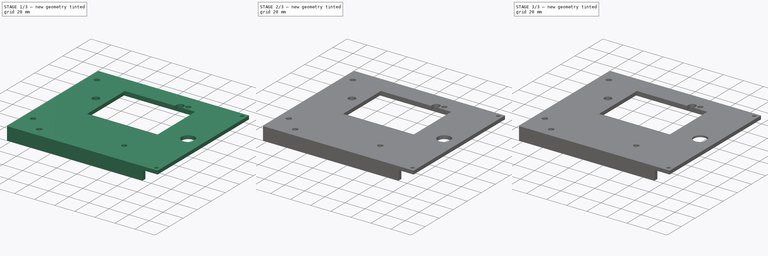
[diagram: build sequence overview — one tinted view per stage of 3, left to right]
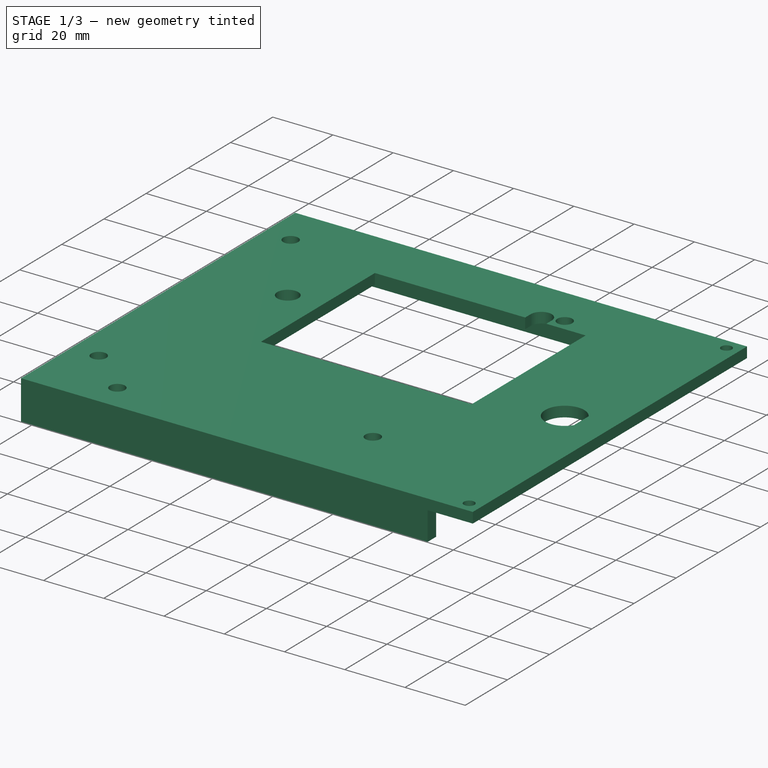
[diagram: stage 1 of 3 — iso view after this stage's code; geometry added in this stage tinted green]
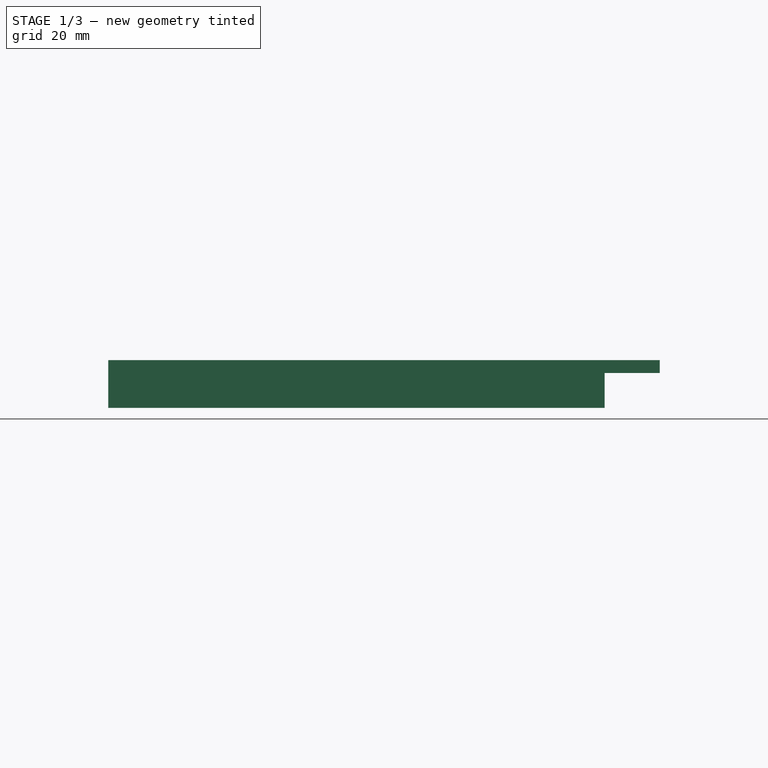
[diagram: stage 1 of 3 — front view after this stage's code; geometry added in this stage tinted green]
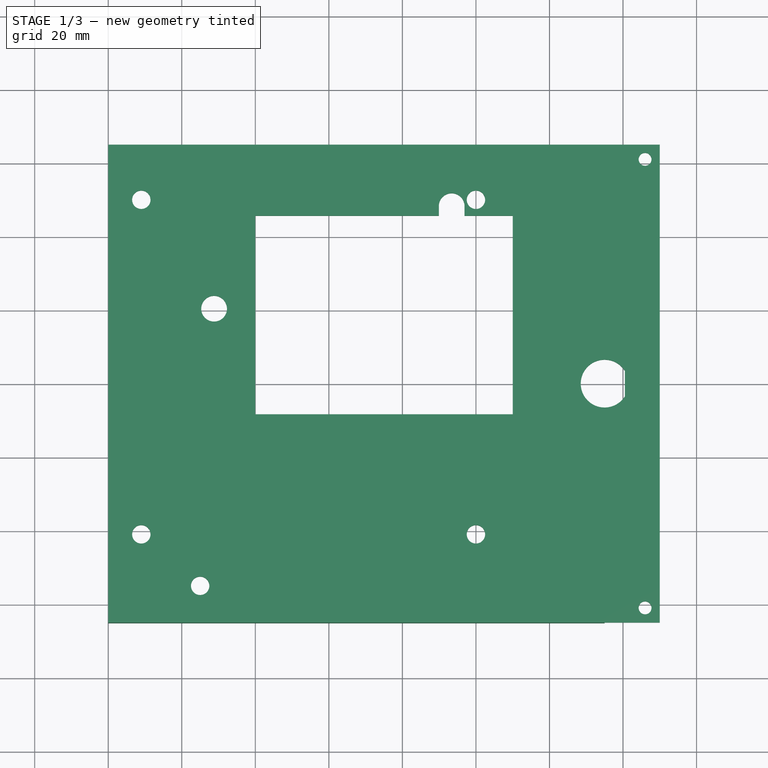
[diagram: stage 1 of 3 — top view after this stage's code; geometry added in this stage tinted green]
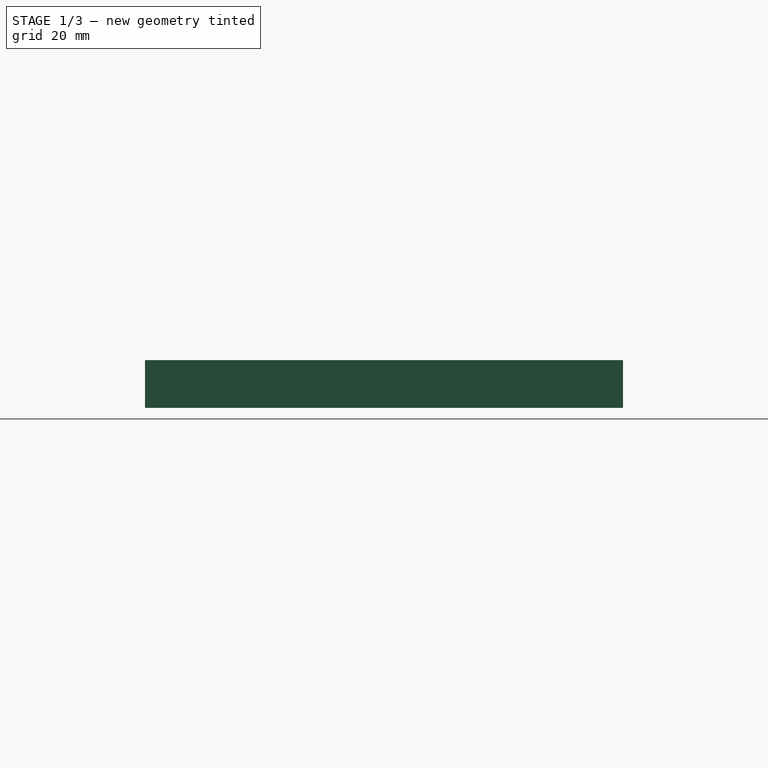
[diagram: stage 1 of 3 — right view after this stage's code; geometry added in this stage tinted green]
FCSTD DOCUMENT  (FreeCAD 0.19R24267 +99 (Git))
Label: T41 7IN Back Right Panel V007
License: All rights reserved
LicenseURL: http://en.wikipedia.org/wiki/All_rights_reserved
objects: Sketcher::SketchObject×6, PartDesign::Pocket×4, PartDesign::Pad×2, PartDesign::Body×1
note: 19 computed .brp shape members not serialized (recipe doc carries the construction recipe); baked Part::Feature solids carry a one-line shape summary decoded from their .brp

FEATURE [Sketcher::SketchObject] CopySketch010
  FullyConstrained = true
  MapMode = 5
  Placement = pos=(0,0,0) rot=(0,1,0;3.14159rad)
  Support = -> [XY_Plane]
  sketch-geometry (22):
    g0: Circle CenterX=-100 CenterY=50 CenterZ=0 NormalX=0 NormalY=0 NormalZ=1 AngleXU=0 Radius=2.5
    g1: Circle CenterX=-100 CenterY=-41 CenterZ=0 NormalX=0 NormalY=0 NormalZ=1 AngleXU=0 Radius=2.5
    g2: Circle CenterX=-9 CenterY=-41 CenterZ=0 NormalX=0 NormalY=0 NormalZ=1 AngleXU=0 Radius=2.5
    g3: Circle CenterX=-9 CenterY=50 CenterZ=0 NormalX=0 NormalY=0 NormalZ=1 AngleXU=0 Radius=2.5
    g4: LineSegment StartX=-40 StartY=-8.35 StartZ=0 EndX=-110 EndY=-8.35 EndZ=0
    g5: LineSegment StartX=-110 StartY=-8.35 StartZ=0 EndX=-110 EndY=45.65 EndZ=0
    g6: LineSegment StartX=-110 StartY=45.65 StartZ=0 EndX=-96.908 EndY=45.65 EndZ=0
    g7: LineSegment StartX=-40 StartY=45.65 StartZ=0 EndX=-40 EndY=-8.35 EndZ=0
    g8: Circle CenterX=-28.79 CenterY=20.377 CenterZ=0 NormalX=0 NormalY=0 NormalZ=1 AngleXU=0 Radius=3.5
    g9: ArcOfCircle CenterX=-93.408 CenterY=48.264 CenterZ=0 NormalX=0 NormalY=0 NormalZ=1 AngleXU=0 Radius=3.5 StartAngle=6.28204 EndAngle=9.42478
    g10: ArcOfCircle CenterX=-135 CenterY=0 CenterZ=0 NormalX=0 NormalY=0 NormalZ=1 AngleXU=0 Radius=6.5 StartAngle=3.70366 EndAngle=8.86271
    g11: LineSegment StartX=-140.5 StartY=-3.4641 StartZ=0 EndX=-140.5 EndY=3.4641 EndZ=0
    g12: LineSegment StartX=-150 StartY=65 StartZ=0 EndX=0 EndY=65 EndZ=0
    g13: LineSegment StartX=0 StartY=65 StartZ=0 EndX=0 EndY=-65 EndZ=0
    g14: LineSegment StartX=0 StartY=-65 StartZ=0 EndX=-150 EndY=-65 EndZ=0
    g15: LineSegment StartX=-150 StartY=-65 StartZ=0 EndX=-150 EndY=65 EndZ=0
    g16: Circle CenterX=-146 CenterY=61 CenterZ=0 NormalX=0 NormalY=0 NormalZ=1 AngleXU=0 Radius=1.75
    g17: Circle CenterX=-146 CenterY=-61 CenterZ=0 NormalX=0 NormalY=0 NormalZ=1 AngleXU=0 Radius=1.75
    g18: LineSegment StartX=-96.908 StartY=48.264 StartZ=0 EndX=-96.908 EndY=45.65 EndZ=0
    g19: LineSegment StartX=-89.908 StartY=48.26 StartZ=0 EndX=-89.908 EndY=45.65 EndZ=0
    g20: LineSegment StartX=-89.908 StartY=45.65 StartZ=0 EndX=-40 EndY=45.65 EndZ=0
    g21: Circle CenterX=-25 CenterY=-55 CenterZ=0 NormalX=0 NormalY=0 NormalZ=1 AngleXU=0 Radius=2.5
  constraints (66):
    c: Equal(g2,g3)
    c: Equal(g2,g1)
    c: Equal(g2,g0)
    c: Diameter(g2) = 5
    c: Vertical(g3,g2)
    c: Horizontal(g2,g1)
    c: Horizontal(g3,g0)
    c: Vertical(g1,g0)
    c: DistanceX(g0,g-1) = 100
    c: DistanceY(g-1,g0) = 50
    c: DistanceY(g1,g0) = 91
    c: DistanceX(g0,g3) = 91
    c: Coincident(g4,g5)
    c: Coincident(g5,g6)
    c: Coincident(g20,g7)
    c: Coincident(g7,g4)
    c: Horizontal(g4)
    c: Horizontal(g6)
    c: Vertical(g5)
    c: Vertical(g7)
    c: DistanceX(g6,g20) = 70
    c: DistanceY(g5,g5) = 54
    c: DistanceX(g5,g0) = 10
    c: DistanceY(g5,g0) = 4.35
    c: Diameter(g8) = 7
    c: DistanceX(g0,g8) = 71.21
    c: DistanceY(g8,g0) = 29.623
    c: Diameter(g9) = 7
    c: DistanceX(g0,g9) = 6.592
    c: DistanceY(g9,g0) = 1.736
    c: Diameter(g10) = 13
    c: DistanceX(g10,g-1) = 135
    c: DistanceY(g10,g-1) = 0
    c: Vertical(g11)
    c: Coincident(g10,g11)
    c: Coincident(g10,g11)
    c: DistanceX(g10,g10) = 5.5
    c: Coincident(g12,g13)
    c: Coincident(g13,g14)
    c: Coincident(g14,g15)
    c: Coincident(g15,g12)
    c: Horizontal(g12)
    c: Horizontal(g14)
    c: Vertical(g13)
    c: Vertical(g15)
    c: PointOnObject(g13,g-2)
    c: DistanceY(g13,g13) = 130
    c: DistanceX(g14,g14) = 150
    c: Equal(g16,g17)
    c: Diameter(g16) = 3.5
    c: DistanceY(g17,g-1) = 61
    c: DistanceX(g17,g-1) = 146
    c: DistanceX(g16,g-1) = 146
    c: DistanceY(g-1,g16) = 61
    c: Vertical(g18)
    c: Vertical(g19)
    c: Tangent(g9,g18) = -1.5708
    c: Coincident(g9,g19)
    c: Coincident(g6,g18)
    c: Coincident(g20,g19)
    c: Tangent(g6,g20)
    c: DistanceY(g19,g19) = 2.61
    c: DistanceY(g-1,g12) = 65
    c: DistanceX(g21,g13) = 25
    c: DistanceY(g13,g21) = 10
    c: Diameter(g21) = 5
FEATURE [PartDesign::Pad] Pad
  Direction = (1,1,1)
  Length = 3.5
  Length2 = 100
  Profile = -> CopySketch010
  Type = 0
FEATURE [Sketcher::SketchObject] Sketch
  FullyConstrained = true
  MapMode = 5
  Support = -> [Pad]
  sketch-geometry (8):
    g0: LineSegment StartX=135 StartY=65 StartZ=0 EndX=135 EndY=61 EndZ=0
    g1: LineSegment StartX=135 StartY=61 StartZ=0 EndX=4 EndY=61 EndZ=0
    g2: LineSegment StartX=4 StartY=61 StartZ=0 EndX=4 EndY=-61 EndZ=0
    g3: LineSegment StartX=4 StartY=-61 StartZ=0 EndX=135 EndY=-61 EndZ=0
    g4: LineSegment StartX=135 StartY=-61 StartZ=0 EndX=135 EndY=-65 EndZ=0
    g5: LineSegment StartX=135 StartY=-65 StartZ=0 EndX=0 EndY=-65 EndZ=0
    g6: LineSegment StartX=0 StartY=-65 StartZ=0 EndX=0 EndY=65 EndZ=0
    g7: LineSegment StartX=0 StartY=65 StartZ=0 EndX=135 EndY=65 EndZ=0
  constraints (24):
    c: Coincident(g0,g1)
    c: Horizontal(g1)
    c: Coincident(g1,g2)
    c: Vertical(g2)
    c: Coincident(g2,g3)
    c: Horizontal(g3)
    c: Coincident(g3,g4)
    c: Vertical(g4)
    c: Coincident(g4,g5)
    c: PointOnObject(g5,g-2)
    c: Horizontal(g5)
    c: Coincident(g5,g6)
    c: PointOnObject(g6,g-2)
    c: Coincident(g6,g7)
    c: Coincident(g7,g0)
    c: Horizontal(g7)
    c: Parallel(g0,g-2)
    c: DistanceY(g0,g0) = 4
    c: DistanceY(g6,g6) = 130
    c: DistanceY(g-1,g6) = 65
    c: DistanceX(g7,g7) = 135
    c: DistanceX(g1,g1) = 131
    c: DistanceY(g4,g4) = 4
    c: DistanceX(g5,g5) = 135
FEATURE [PartDesign::Pad] Pad001  label="Flange"
  BaseFeature = -> Pad
  Direction = (1,1,1)
  Length = 13
  Length2 = 100
  Profile = -> Sketch
  Reversed = true
  Type = 0
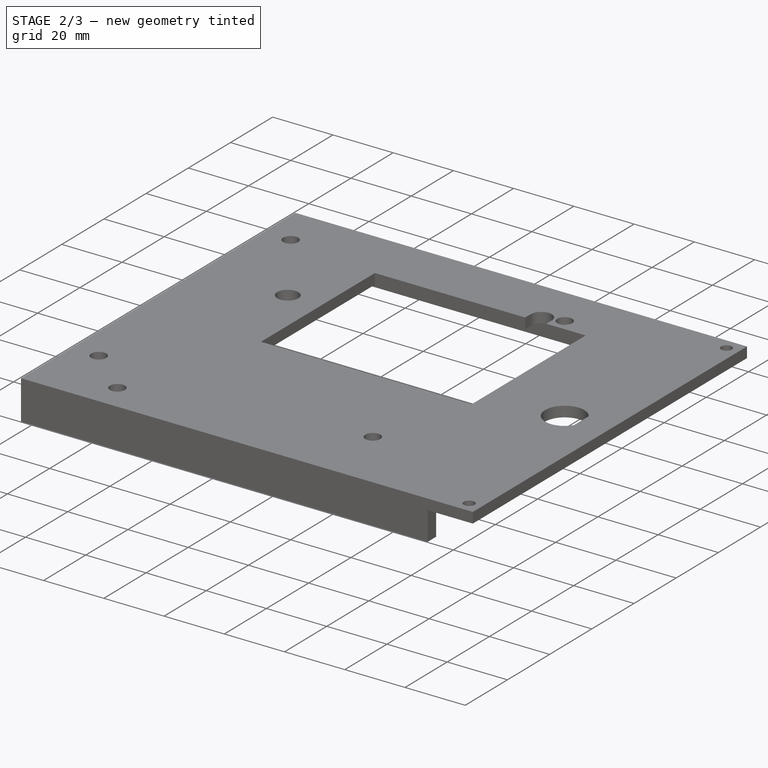
[diagram: stage 2 of 3 — iso view after this stage's code; geometry added in this stage tinted green]
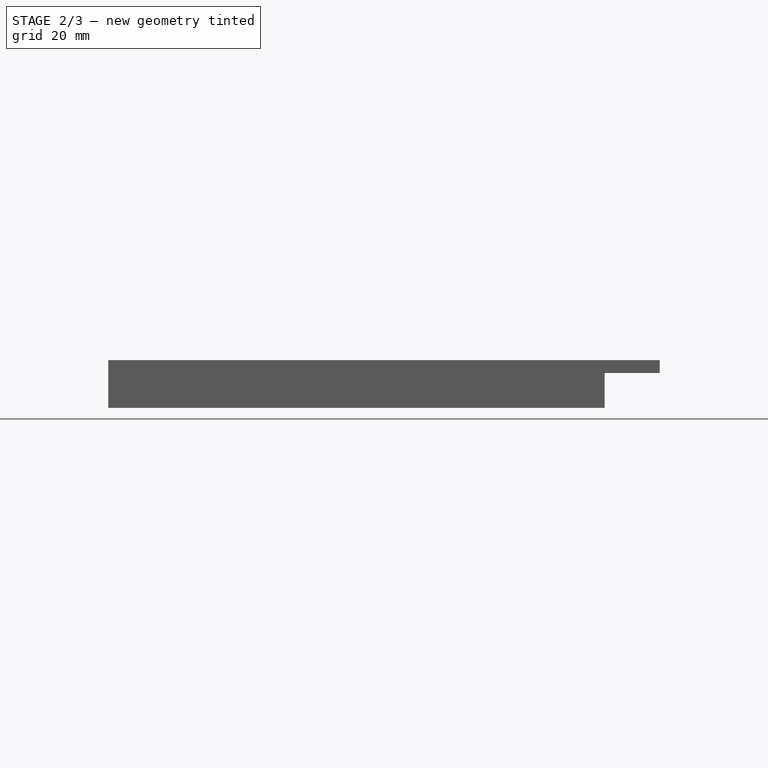
[diagram: stage 2 of 3 — front view after this stage's code; geometry added in this stage tinted green]
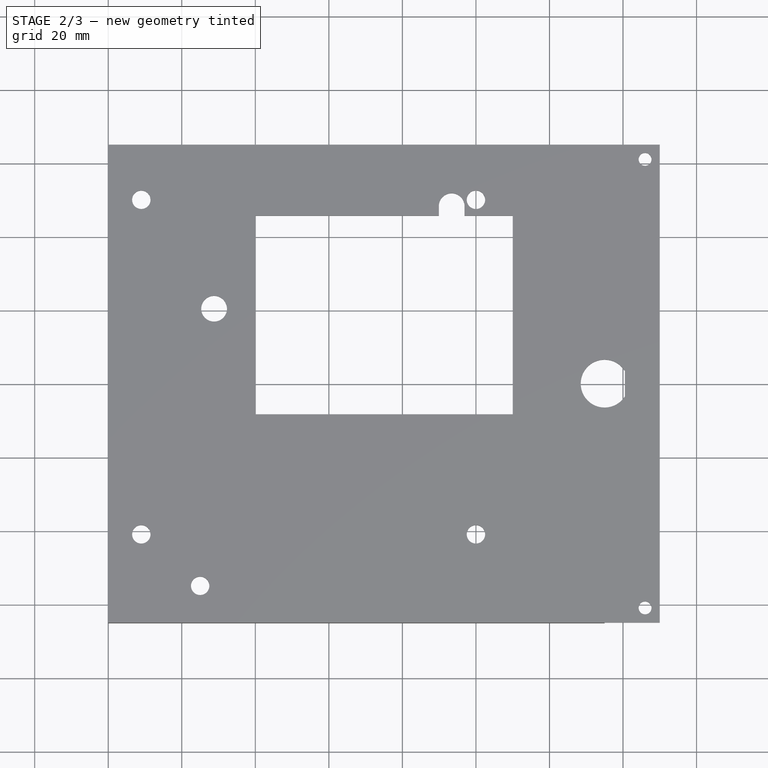
[diagram: stage 2 of 3 — top view after this stage's code; geometry added in this stage tinted green]
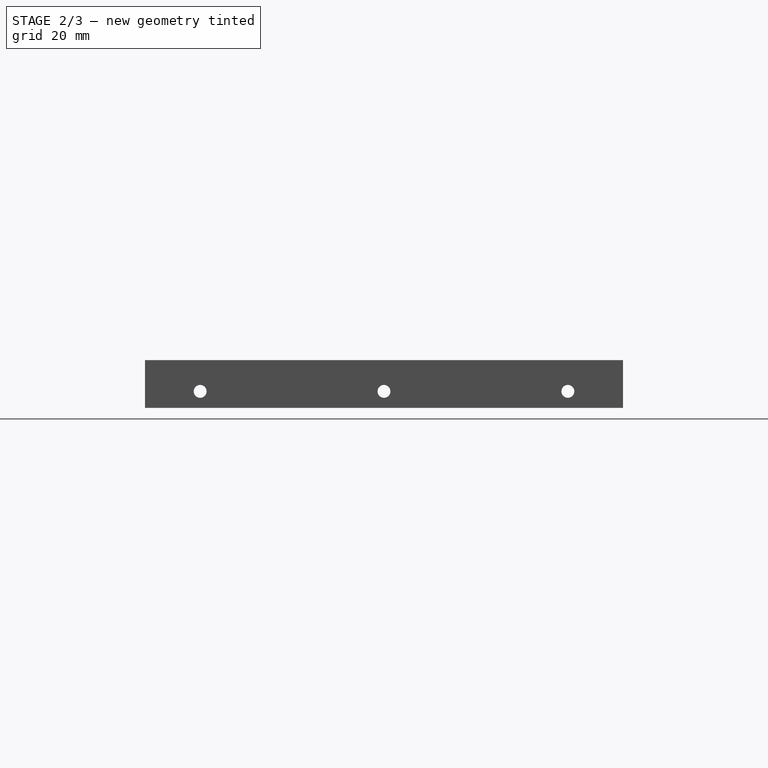
[diagram: stage 2 of 3 — right view after this stage's code; geometry added in this stage tinted green]
FEATURE [Sketcher::SketchObject] Sketch001
  FullyConstrained = true
  MapMode = 5
  Placement = pos=(0,0,0) rot=(0.57735,0.57735,0.57735;2.0944rad)
  Support = -> [YZ_Plane]
  sketch-geometry (3):
    g0: Circle CenterX=0 CenterY=-8.5 CenterZ=0 NormalX=0 NormalY=0 NormalZ=1 AngleXU=0 Radius=1.75
    g1: Circle CenterX=50 CenterY=-8.5 CenterZ=0 NormalX=0 NormalY=0 NormalZ=1 AngleXU=0 Radius=1.75
    g2: Circle CenterX=-50 CenterY=-8.5 CenterZ=0 NormalX=0 NormalY=0 NormalZ=1 AngleXU=0 Radius=1.75
  constraints (9):
    c: Equal(g1,g0)
    c: Equal(g1,g2)
    c: Radius(g1) = 1.75
    c: PointOnObject(g0,g-2)
    c: DistanceX(g-1,g1) = 50
    c: DistanceX(g2,g-1) = 50
    c: DistanceY(g1,g-1) = 8.5
    c: Horizontal(g1,g0)
    c: Horizontal(g0,g2)
FEATURE [PartDesign::Pocket] Pocket  label="Center holes"
  BaseFeature = -> Pad001
  Length = 5
  Length2 = 100
  Profile = -> Sketch001
  Reversed = true
  Type = 0
FEATURE [Sketcher::SketchObject] Sketch002
  AttachmentOffset = pos=(0,0,60) rot=(0,0,1;0rad)
  FullyConstrained = true
  MapMode = 5
  Placement = pos=(0,-60,-1.33e-14) rot=(1,0,0;1.5708rad)
  Support = -> [XZ_Plane]
  sketch-geometry (1):
    g0: Circle CenterX=52 CenterY=-7 CenterZ=0 NormalX=0 NormalY=0 NormalZ=1 AngleXU=0 Radius=1.15
  constraints (3):
    c: DistanceX(g-1,g0) = 52
    c: DistanceY(g0,g-1) = 7
    c: Diameter(g0) = 2.3
FEATURE [PartDesign::Pocket] Pocket001  label="Top hole"
  BaseFeature = -> Pocket
  Length = 5
  Length2 = 100
  Midplane = true
  Profile = -> Sketch002
  Type = 0
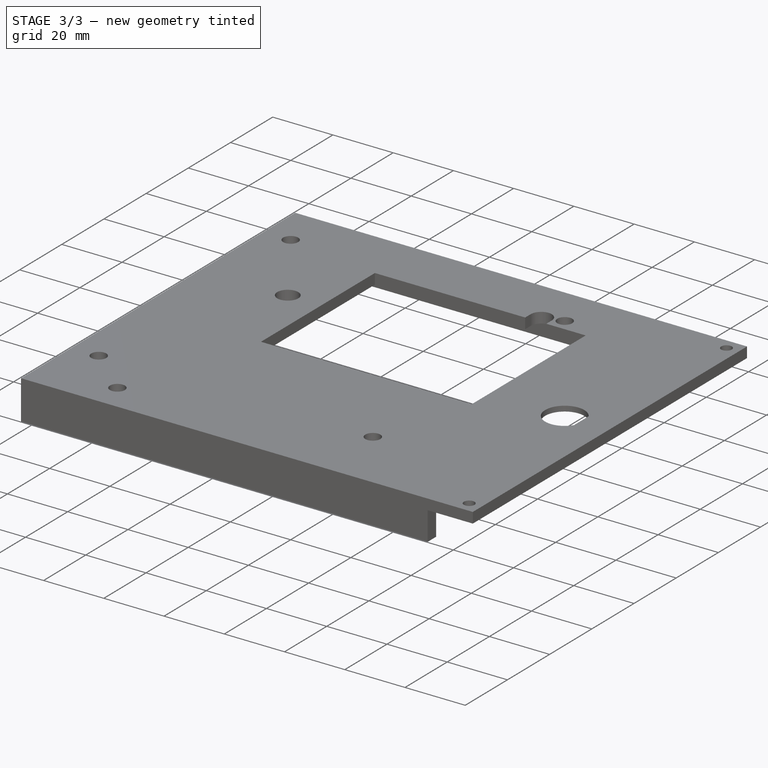
[diagram: stage 3 of 3 — iso view after this stage's code; geometry added in this stage tinted green]
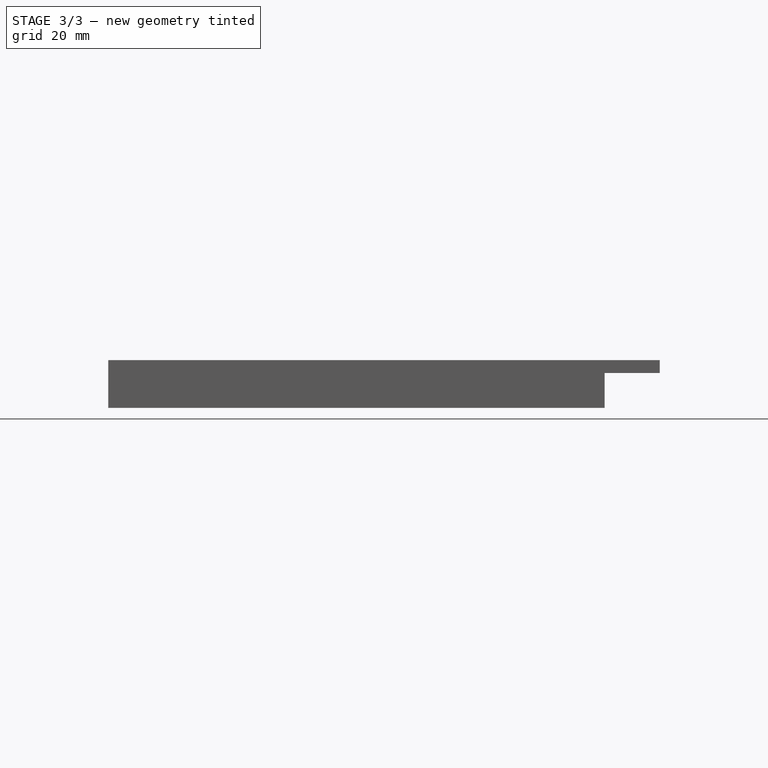
[diagram: stage 3 of 3 — front view after this stage's code; geometry added in this stage tinted green]
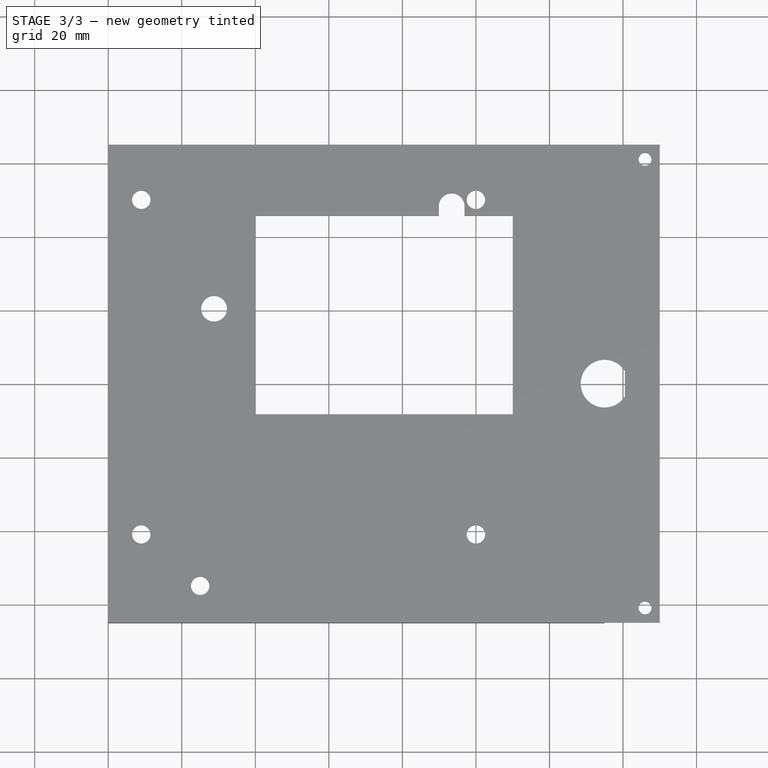
[diagram: stage 3 of 3 — top view after this stage's code; geometry added in this stage tinted green]
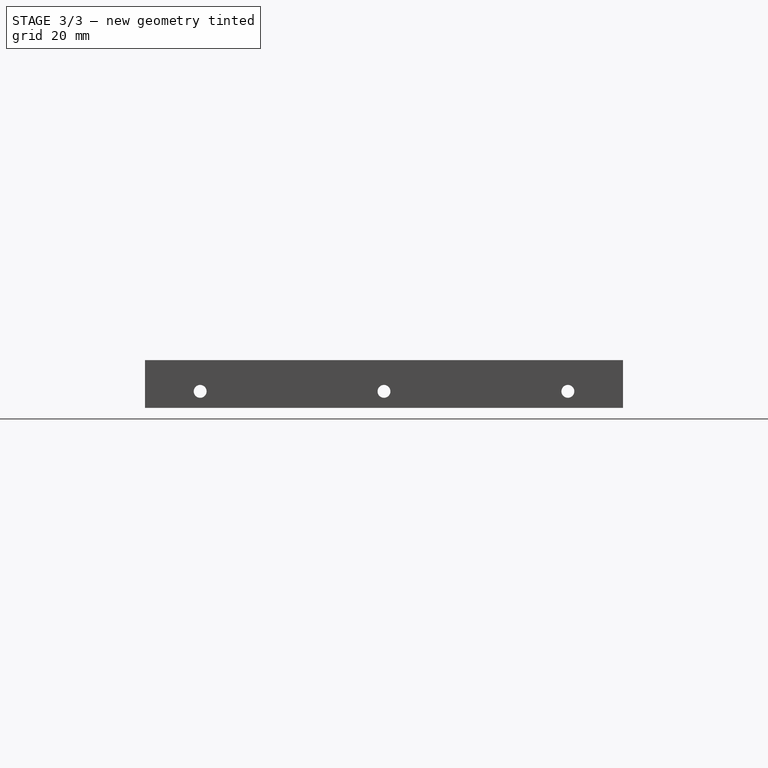
[diagram: stage 3 of 3 — right view after this stage's code; geometry added in this stage tinted green]
FEATURE [Sketcher::SketchObject] Sketch003
  AttachmentOffset = pos=(0,0,-65) rot=(0,0,1;0rad)
  FullyConstrained = true
  MapMode = 5
  Placement = pos=(0,65,1.44e-14) rot=(1,0,0;1.5708rad)
  Support = -> [XZ_Plane]
  sketch-geometry (4):
    g0: Circle CenterX=25 CenterY=-8 CenterZ=0 NormalX=0 NormalY=0 NormalZ=1 AngleXU=0 Radius=0.875
    g1: Circle CenterX=125 CenterY=-8 CenterZ=0 NormalX=0 NormalY=0 NormalZ=1 AngleXU=0 Radius=0.875
    g2: Circle CenterX=95 CenterY=-8 CenterZ=0 NormalX=0 NormalY=0 NormalZ=1 AngleXU=0 Radius=0.75
    g3: Circle CenterX=55 CenterY=-8 CenterZ=0 NormalX=0 NormalY=0 NormalZ=1 AngleXU=0 Radius=0.75
  constraints (12):
    c: DistanceX(g-1,g0) = 25
    c: Horizontal(g1,g0)
    c: DistanceX(g-1,g1) = 125
    c: Equal(g1,g0)
    c: Diameter(g1) = 1.75
    c: DistanceY(g0,g-1) = 8
    c: DistanceX(g-1,g2) = 95
    c: DistanceX(g-1,g3) = 55
    c: Horizontal(g0,g3)
    c: Horizontal(g3,g2)
    c: Equal(g2,g3)
    c: Radius(g2) = 0.75
FEATURE [PartDesign::Pocket] Pocket002
  BaseFeature = -> Pocket001
  Length = 5
  Length2 = 100
  Midplane = true
  Profile = -> Sketch003
  Reversed = true
  Type = 0
FEATURE [Sketcher::SketchObject] Sketch004
  AttachmentOffset = pos=(0,0,-3.5) rot=(0,0,1;0rad)
  FullyConstrained = true
  MapMode = 5
  Placement = pos=(0,0,-3.5) rot=(0,0,1;0rad)
  Support = -> [XY_Plane]
  sketch-geometry (1):
    g0: Circle CenterX=135 CenterY=0 CenterZ=0 NormalX=0 NormalY=0 NormalZ=1 AngleXU=0 Radius=12
  constraints (3):
    c: DistanceX(g-1,g0) = 135
    c: DistanceY(g0,g-1) = 0
    c: Radius(g0) = 12
FEATURE [PartDesign::Pocket] Pocket003
  BaseFeature = -> Pocket002
  Length = 1.75
  Length2 = 100
  Profile = -> Sketch004
  Reversed = true
  Type = 0
FEATURE [PartDesign::Body] Body  label="Back Panel  r"
  Group = -> [CopySketch010,Pad,Sketch,Pad001,Sketch001,Pocket,Sketch002,Pocket001,Sketch003,Pocket002,Sketch004,Pocket003]
  Origin = -> Origin
  Tip = -> Pocket003
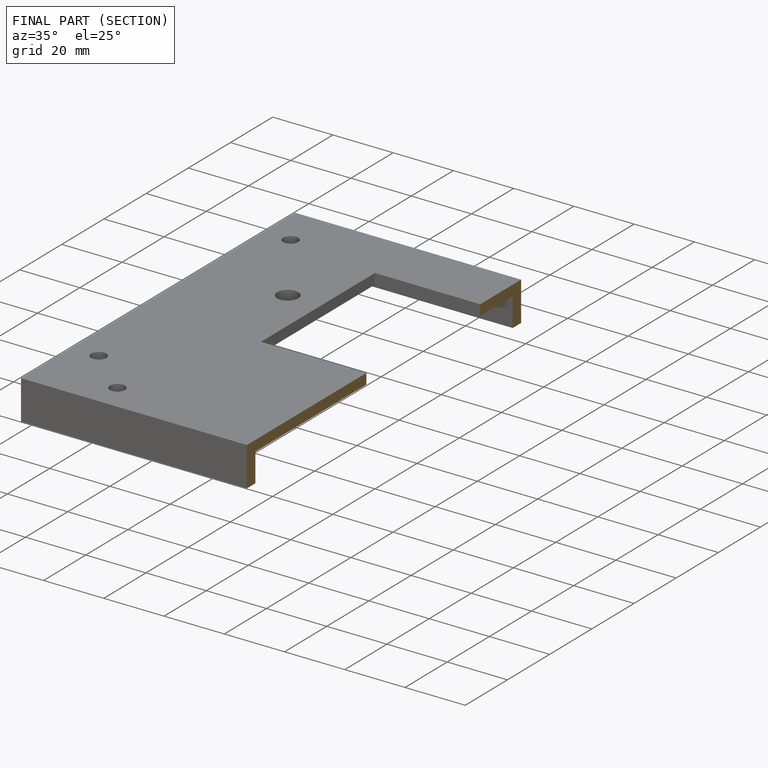
[diagram: finished part — half-section view (interior)]
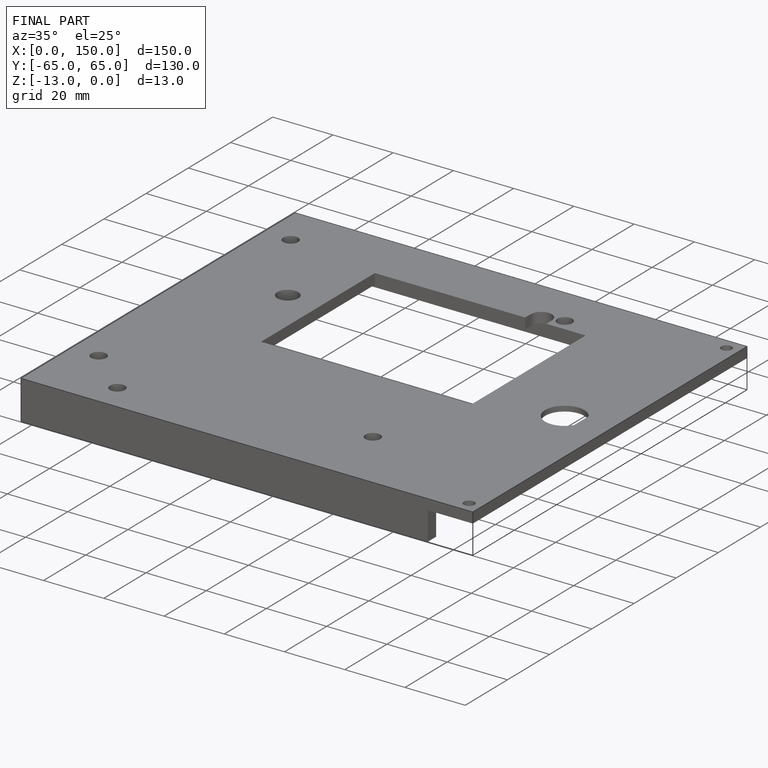
[diagram: finished part — iso view with bounding-box wireframe]
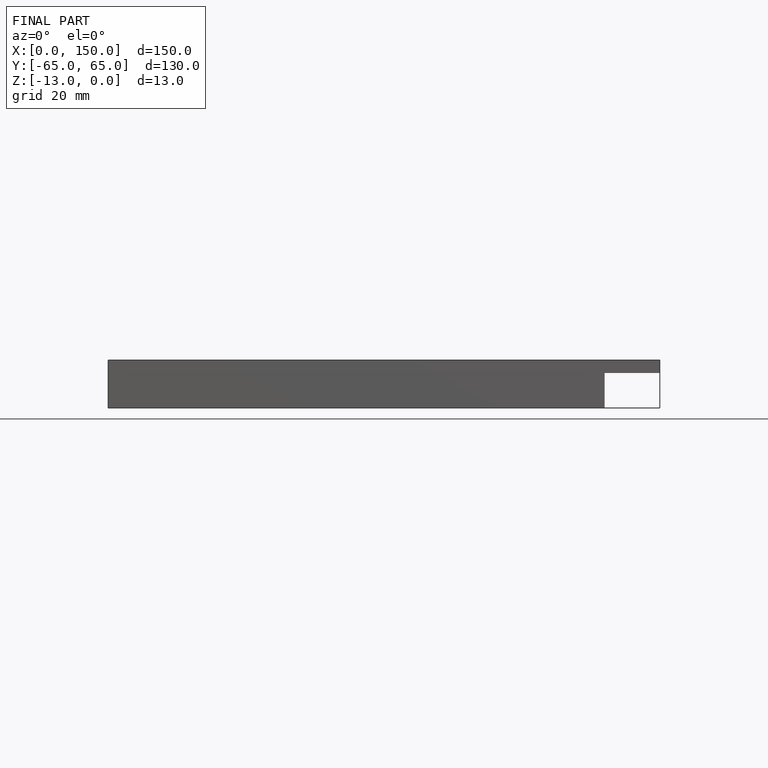
[diagram: finished part — front view with bounding-box wireframe]
